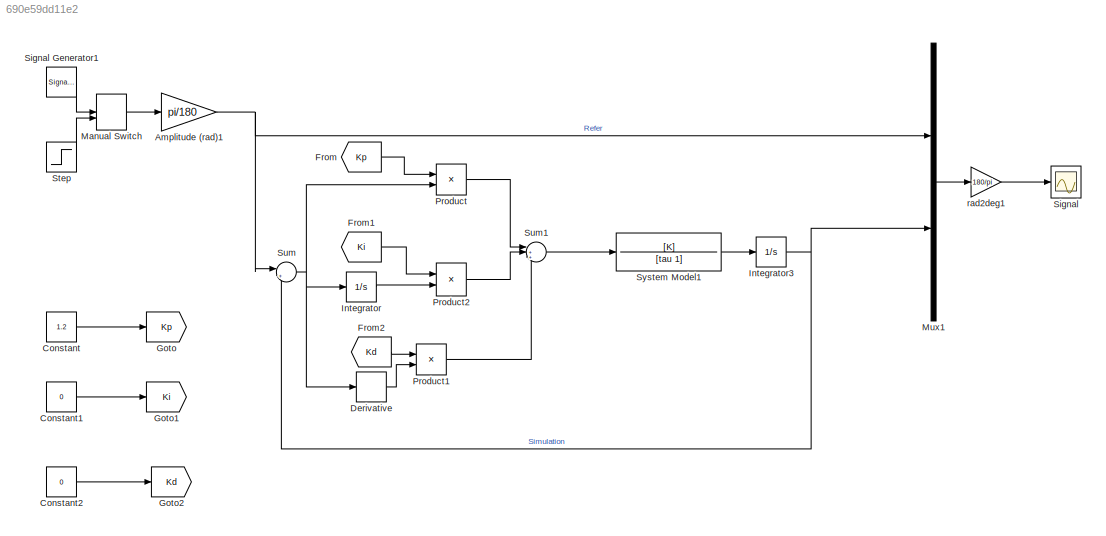
MODEL slx_690e59dd11e2
KIND model
CONFIG AbsTol = auto
CONFIG EnableMultiTasking = on
CONFIG FixedStep = 0.002
CONFIG MaxStep = auto
CONFIG MinStep = auto
CONFIG RelTol = 1e-3
CONFIG SampleTimeConstraint = Unconstrained
CONFIG SolverName = FixedStepAuto
CONFIG StartTime = 0.0
CONFIG StopTime = 20
BLOCK [Gain] Amplitude (rad)1
  Gain = pi/180
BLOCK [Constant] Constant
  Value = 1.2
BLOCK [Constant] Constant1
  Value = 0
BLOCK [Constant] Constant2
  Value = 0
BLOCK [Derivative] Derivative
BLOCK [From] From
  GotoTag = Kp
BLOCK [From] From1
  GotoTag = Ki
BLOCK [From] From2
  GotoTag = Kd
BLOCK [Goto] Goto
  GotoTag = Kp
BLOCK [Goto] Goto1
  GotoTag = Ki
BLOCK [Goto] Goto2
  GotoTag = Kd
BLOCK [Integrator] Integrator
BLOCK [Integrator] Integrator3
BLOCK [ManualSwitch] Manual Switch
  CurrentSetting = 0
BLOCK [Mux] Mux1
  DisplayOption = bar
  Inputs = 2
BLOCK [Product] Product
BLOCK [Product] Product1
BLOCK [Product] Product2
BLOCK [Scope] Signal
  ActiveDisplayYMaximum = 1.3120881353724905
  ActiveDisplayYMinimum = -0.11343402877258624
  DataLogging = on
  DataLoggingDecimateData = on
  DataLoggingDecimation = 1
  DataLoggingLimitDataPoints = on
  DataLoggingMaxPoints = 25000
  DataLoggingSaveFormat = Array
  Floating = off
  GraphicalSettings = {"Style":{"BackgroundColor":[0.12941176470588237,0.12941176470588237,0.12941176470588237],"AxesColor":[0.07058823529411765,0.07058823529411765,0.07058823529411765],"LabelsColor":[0.8509803921568627,0.8509803921568627,0.8509803921568627],"PreserveColors":false,"Visible":[true,true],"LineStyle":["-","-"],"LineWidth":[1.5,1.5],"BarWidth":[0.9,0.9],"LineColor":["auto","auto"],"LineFaceAlpha":[1,1],"Li...<+2168ch>
  MultipleDisplayCache = [{"MaxYLimMag":152.67463,"MaxYLimReal":1.3120881353724905,"MinYLimMag":0,"MinYLimReal":-0.11343402877258624,"PlotAsMagnitudePhase":false,"ShowGrid":true,"ShowLegend":true,"Title":"%<SignalLabel>","YLabel":""}]
  NumInputPorts = 1
  ScopeFrameLocation = window
  ShowLegend = on
  TimeSpan = 20
  WasSavedAsWebScope = on
  WindowPosition = [600.000000,216.000000,860.000000,518.000000,]
BLOCK [SignalGenerator] Signal Generator1
  Amplitude = 45
  Frequency = 0.1
  WaveForm = square
BLOCK [Step] Step
  SampleTime = 0
BLOCK [Sum] Sum
  Inputs = |+-
BLOCK [Sum] Sum1
  Inputs = |+++
BLOCK [TransferFcn] System Model1
  Denominator = [tau 1]
  Numerator = [K]
BLOCK [Gain] rad2deg1
  Gain = 180/pi
NET Amplitude (rad)1:1 -> Mux1:1, Sum:1
LINE Constant1:1 -> Goto1:1
LINE Constant2:1 -> Goto2:1
LINE Constant:1 -> Goto:1
LINE Derivative:1 -> Product1:2
LINE From1:1 -> Product2:1
LINE From2:1 -> Product1:1
LINE From:1 -> Product:1
NET Integrator3:1 -> Mux1:2, Sum:2
LINE Integrator:1 -> Product2:2
LINE Manual Switch:1 -> Amplitude (rad)1:1
LINE Mux1:1 -> rad2deg1:1
LINE Product1:1 -> Sum1:3
LINE Product2:1 -> Sum1:2
LINE Product:1 -> Sum1:1
LINE Signal Generator1:1 -> Manual Switch:1
LINE Step:1 -> Manual Switch:2
LINE Sum1:1 -> System Model1:1
NET Sum:1 -> Derivative:1, Integrator:1, Product:2
LINE System Model1:1 -> Integrator3:1
LINE rad2deg1:1 -> Signal:1
note: NET lines group one-source signal fan-out (src -> all destinations, sorted); 1:1 wires keep LINE
